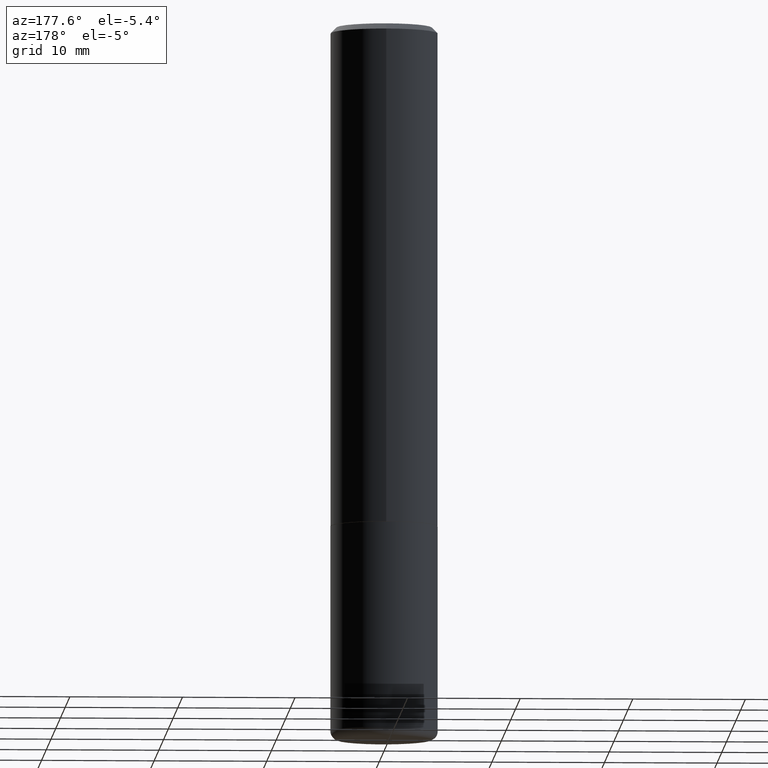
[diagram: clean part render]
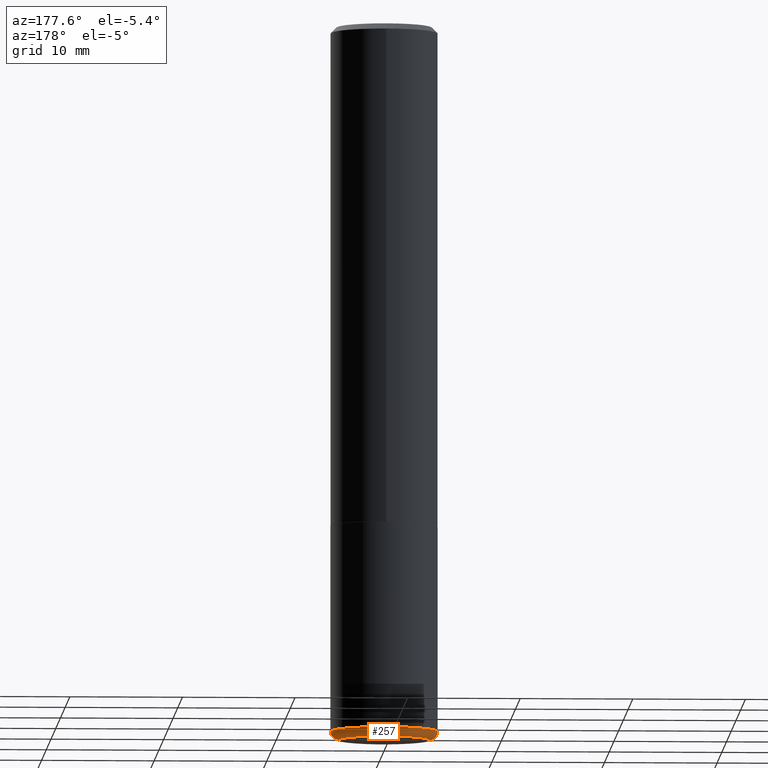
[diagram: same view with one face highlighted and labeled with its STEP entity id]
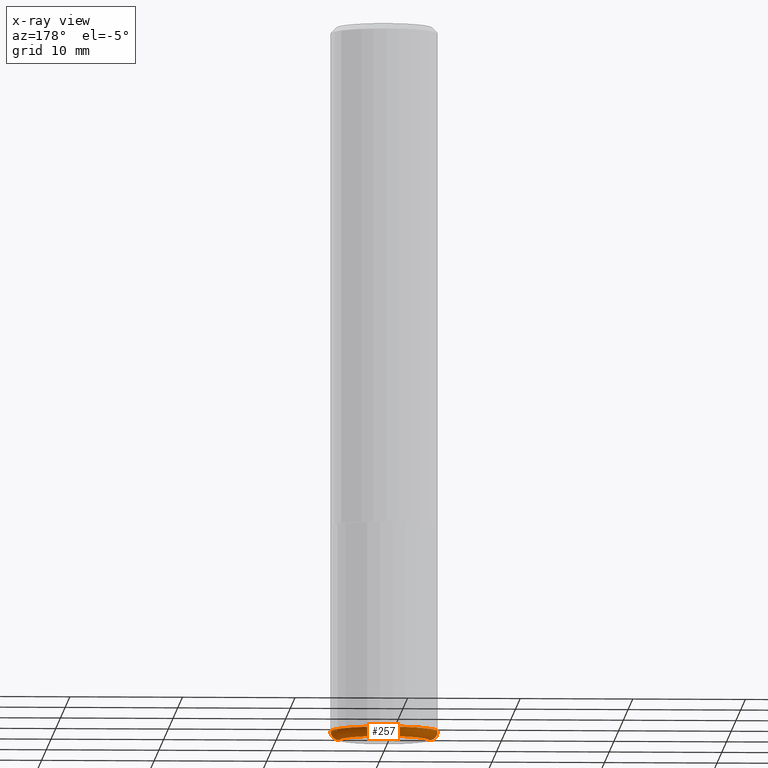
[diagram: x-ray of the same camera — body ghosted, the highlighted face saturated]
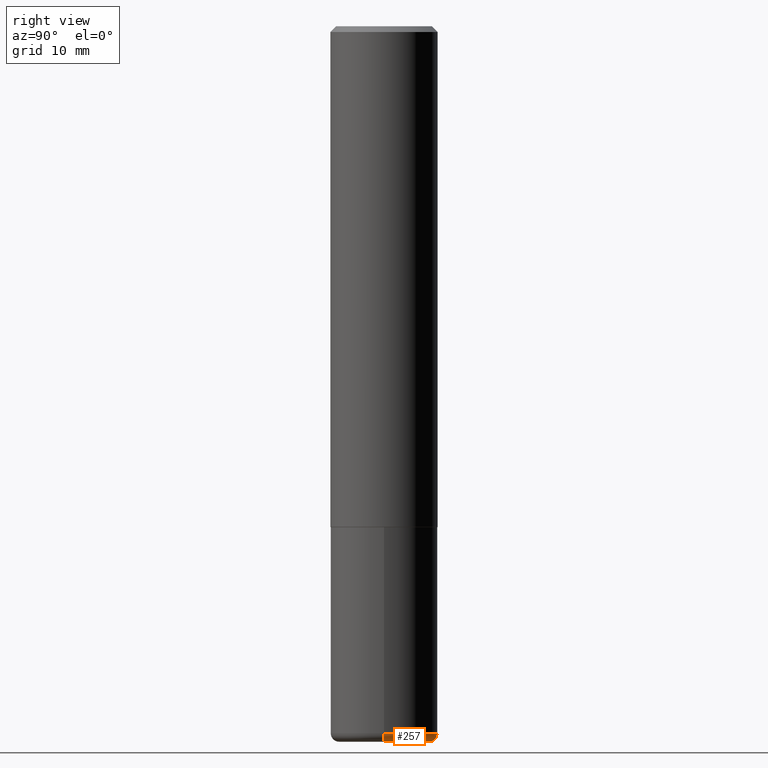
[diagram: same view with one face highlighted and labeled with its STEP entity id]
A machine part, auxiliary view. The second image highlights one B-rep face of the part: STEP entity #257.
The next image is the same camera in x-ray: the body ghosted, the highlighted face saturated — about 0% of this face is hidden behind the body in this view.
A second angle (right view) of the same face is appended — the face is thin or edge-on in the first view.
In plain terms, the highlighted toroidal blend (fillet) surface has major radius 4.0005 mm and minor (blend) radius 0.762 mm.
Its self-contained STEP definition (entity closure, byte-faithful):
#10 = CARTESIAN_POINT ( 'NONE',  ( 0.1875000000000000555, -9.933264409008746581E-15, -2.470000000000000195 ) ) ;
#27 = DIRECTION ( 'NONE',  ( 7.105427357601001859E-15, 1.000000000000000000, -3.491481338843145583E-15 ) ) ;
#38 = AXIS2_PLACEMENT_3D ( 'NONE', #389, #27, #164 ) ;
#47 = EDGE_CURVE ( 'NONE', #130, #88, #226, .T. ) ;
#65 = CARTESIAN_POINT ( 'NONE',  ( 6.040307951277287977E-29, -8.623958906942569995E-15, -2.470000000000000195 ) ) ;
#88 = VERTEX_POINT ( 'NONE', #290 ) ;
#93 = CARTESIAN_POINT ( 'NONE',  ( 0.1575000000000000289, -9.828519968843451634E-15, -2.500000000000000000 ) ) ;
#104 = AXIS2_PLACEMENT_3D ( 'NONE', #175, #149, #244 ) ;
#109 = VERTEX_POINT ( 'NONE', #93 ) ;
#114 = EDGE_LOOP ( 'NONE', ( #320, #324, #250, #309 ) ) ;
#130 = VERTEX_POINT ( 'NONE', #225 ) ;
#134 = CIRCLE ( 'NONE', #362, 0.02999999999999998848 ) ;
#136 = DIRECTION ( 'NONE',  ( -2.445468806185136597E-29, 3.491481338843145583E-15, 1.000000000000000000 ) ) ;
#149 = DIRECTION ( 'NONE',  ( -2.445468806185136597E-29, 3.491481338843145583E-15, 1.000000000000000000 ) ) ;
#164 = DIRECTION ( 'NONE',  ( -1.000000000000000000, 7.105427357600993970E-15, 0.000000000000000000 ) ) ;
#170 = DIRECTION ( 'NONE',  ( 1.000000000000000000, -6.982962677686265922E-15, 0.000000000000000000 ) ) ;
#175 = CARTESIAN_POINT ( 'NONE',  ( 6.113672015462842613E-29, -8.728703347107864943E-15, -2.500000000000000000 ) ) ;
#179 = DIRECTION ( 'NONE',  ( 1.000000000000000000, -6.982962677686270655E-15, 0.000000000000000000 ) ) ;
#204 = DIRECTION ( 'NONE',  ( 1.000000000000000000, -6.982962677686267499E-15, 4.883557194083113462E-29 ) ) ;
#205 = CARTESIAN_POINT ( 'NONE',  ( 0.1575000000000000289, -9.723775528678158264E-15, -2.470000000000000195 ) ) ;
#207 = VERTEX_POINT ( 'NONE', #10 ) ;
#220 = EDGE_CURVE ( 'NONE', #207, #88, #288, .T. ) ;
#225 = CARTESIAN_POINT ( 'NONE',  ( -0.1575000000000000289, -7.450644907839044743E-15, -2.500000000000000000 ) ) ;
#226 = CIRCLE ( 'NONE', #38, 0.02999999999999998848 ) ;
#235 = DIRECTION ( 'NONE',  ( -2.445468806185136597E-29, 3.491481338843145583E-15, 1.000000000000000000 ) ) ;
#244 = DIRECTION ( 'NONE',  ( 1.000000000000000000, -6.982962677686267499E-15, 0.000000000000000000 ) ) ;
#250 = ORIENTED_EDGE ( 'NONE', *, *, #220, .F. ) ;
#257 = ADVANCED_FACE ( 'NONE', ( #395 ), #408, .T. ) ;
#271 = CARTESIAN_POINT ( 'NONE',  ( 6.040307951277287977E-29, -8.623958906942569995E-15, -2.470000000000000195 ) ) ;
#282 = DIRECTION ( 'NONE',  ( -6.982962677686266711E-15, -1.000000000000000000, 3.491481338843145583E-15 ) ) ;
#288 = CIRCLE ( 'NONE', #306, 0.1875000000000000555 ) ;
#290 = CARTESIAN_POINT ( 'NONE',  ( -0.1875000000000000555, -7.291691277392382147E-15, -2.470000000000000195 ) ) ;
#293 = CIRCLE ( 'NONE', #104, 0.1575000000000000289 ) ;
#306 = AXIS2_PLACEMENT_3D ( 'NONE', #271, #235, #170 ) ;
#309 = ORIENTED_EDGE ( 'NONE', *, *, #349, .F. ) ;
#320 = ORIENTED_EDGE ( 'NONE', *, *, #405, .T. ) ;
#324 = ORIENTED_EDGE ( 'NONE', *, *, #47, .T. ) ;
#349 = EDGE_CURVE ( 'NONE', #109, #207, #134, .T. ) ;
#362 = AXIS2_PLACEMENT_3D ( 'NONE', #205, #282, #179 ) ;
#389 = CARTESIAN_POINT ( 'NONE',  ( -0.1575000000000000289, -7.504854098120412392E-15, -2.470000000000000195 ) ) ;
#395 = FACE_OUTER_BOUND ( 'NONE', #114, .T. ) ;
#396 = AXIS2_PLACEMENT_3D ( 'NONE', #65, #136, #204 ) ;
#405 = EDGE_CURVE ( 'NONE', #109, #130, #293, .T. ) ;
#408 = TOROIDAL_SURFACE ( 'NONE', #396, 0.1575000000000000289, 0.02999999999999998848 ) ;